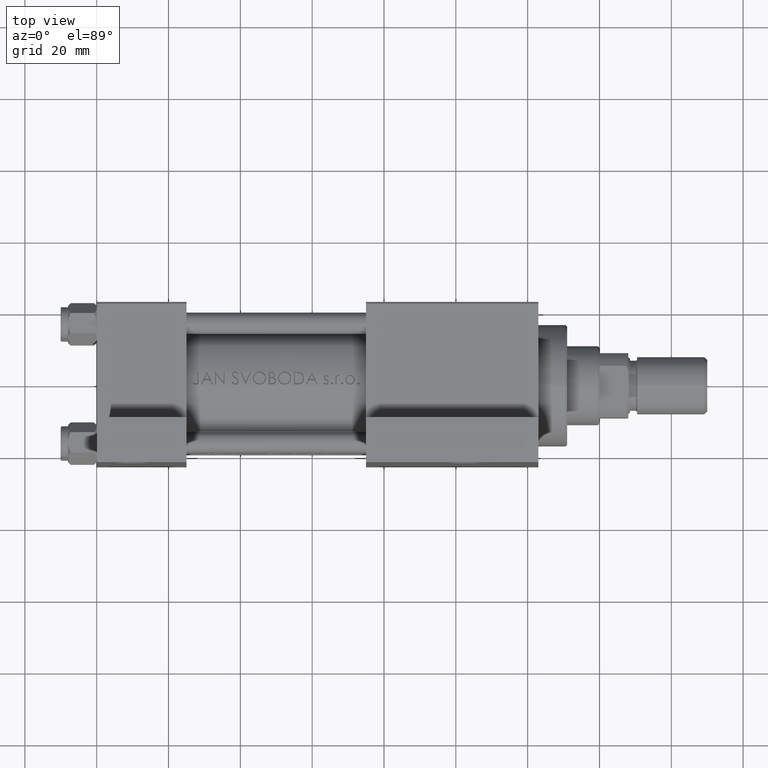
[diagram: clean part render]
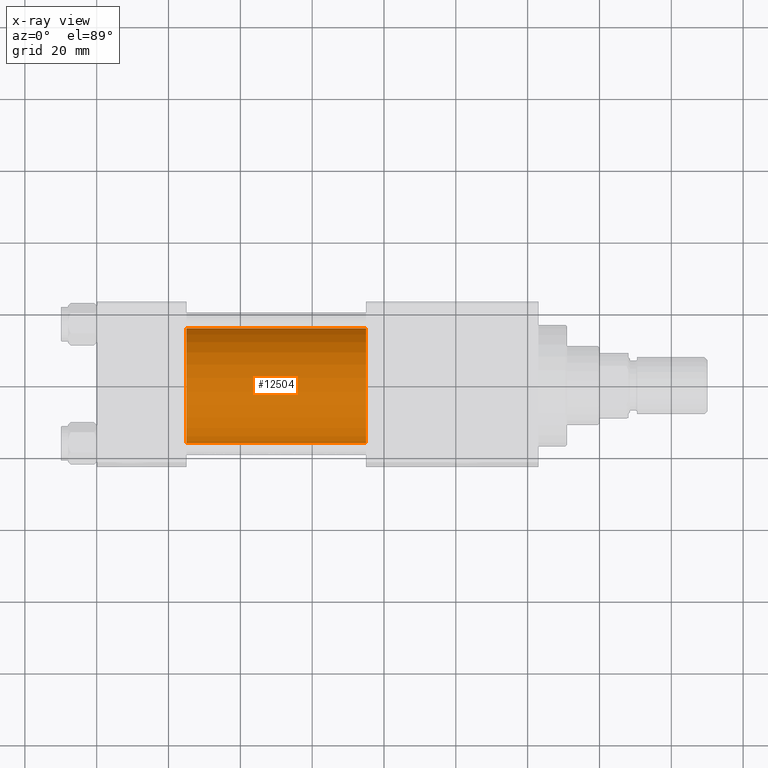
[diagram: x-ray — body ghosted, one internal face saturated and labeled with its STEP entity id]
A machine part, top view, then the same camera in x-ray: the body is ghosted and one INTERNAL B-rep face — a face not visible from any outside direction — is saturated and labeled: STEP entity #12504.
In plain terms, the highlighted cylindrical surface (partial cylindrical patch) has radius 16 mm, axis along (-1, -0, 0).
Its self-contained STEP definition (entity closure, byte-faithful):
#884 = CARTESIAN_POINT ( 'NONE',  ( 75.00000000000001421, 0.000000000000000000, -0.4999999999999970024 ) ) ;
#1369 = FACE_OUTER_BOUND ( 'NONE', #23830, .T. ) ;
#1682 = DIRECTION ( 'NONE',  ( 1.000000000000000000, 0.000000000000000000, 0.000000000000000000 ) ) ;
#4900 = CARTESIAN_POINT ( 'NONE',  ( 75.00000000000001421, 0.000000000000000000, 15.50000000000000355 ) ) ;
#5267 = DIRECTION ( 'NONE',  ( 0.000000000000000000, 0.000000000000000000, 1.000000000000000000 ) ) ;
#5868 = LINE ( 'NONE', #4900, #34252 ) ;
#6221 = ORIENTED_EDGE ( 'NONE', *, *, #37836, .T. ) ;
#6539 = VERTEX_POINT ( 'NONE', #35494 ) ;
#8382 = CARTESIAN_POINT ( 'NONE',  ( 75.00000000000001421, 0.000000000000000000, -0.4999999999999970024 ) ) ;
#9097 = DIRECTION ( 'NONE',  ( 0.000000000000000000, 0.000000000000000000, -1.000000000000000000 ) ) ;
#9909 = ORIENTED_EDGE ( 'NONE', *, *, #16137, .F. ) ;
#12212 = CIRCLE ( 'NONE', #22276, 16.00000000000000000 ) ;
#12504 = ADVANCED_FACE ( 'NONE', ( #1369 ), #35101, .F. ) ;
#16137 = EDGE_CURVE ( 'NONE', #20374, #28350, #5868, .T. ) ;
#17475 = CARTESIAN_POINT ( 'NONE',  ( 25.00000000000000000, 0.000000000000000000, -0.4999999999999970024 ) ) ;
#17698 = ORIENTED_EDGE ( 'NONE', *, *, #33313, .F. ) ;
#18708 = AXIS2_PLACEMENT_3D ( 'NONE', #8382, #23894, #9097 ) ;
#18724 = LINE ( 'NONE', #40602, #20353 ) ;
#19686 = DIRECTION ( 'NONE',  ( -1.000000000000000000, -0.000000000000000000, -0.000000000000000000 ) ) ;
#20353 = VECTOR ( 'NONE', #33537, 1000.000000000000000 ) ;
#20374 = VERTEX_POINT ( 'NONE', #21584 ) ;
#20767 = VERTEX_POINT ( 'NONE', #33112 ) ;
#21584 = CARTESIAN_POINT ( 'NONE',  ( 75.00000000000001421, 0.000000000000000000, 15.50000000000000355 ) ) ;
#22276 = AXIS2_PLACEMENT_3D ( 'NONE', #17475, #1682, #35185 ) ;
#23830 = EDGE_LOOP ( 'NONE', ( #6221, #33659, #17698, #9909 ) ) ;
#23894 = DIRECTION ( 'NONE',  ( 1.000000000000000000, 0.000000000000000000, 0.000000000000000000 ) ) ;
#27141 = CARTESIAN_POINT ( 'NONE',  ( 25.00000000000000000, 0.000000000000000000, 15.50000000000000355 ) ) ;
#28350 = VERTEX_POINT ( 'NONE', #27141 ) ;
#30975 = DIRECTION ( 'NONE',  ( -1.000000000000000000, -0.000000000000000000, -0.000000000000000000 ) ) ;
#33112 = CARTESIAN_POINT ( 'NONE',  ( 75.00000000000001421, 1.959434878635765131E-15, -16.49999999999999645 ) ) ;
#33313 = EDGE_CURVE ( 'NONE', #28350, #6539, #12212, .T. ) ;
#33537 = DIRECTION ( 'NONE',  ( -1.000000000000000000, -0.000000000000000000, -0.000000000000000000 ) ) ;
#33659 = ORIENTED_EDGE ( 'NONE', *, *, #45899, .T. ) ;
#34252 = VECTOR ( 'NONE', #19686, 1000.000000000000000 ) ;
#35101 = CYLINDRICAL_SURFACE ( 'NONE', #39610, 16.00000000000000000 ) ;
#35185 = DIRECTION ( 'NONE',  ( 0.000000000000000000, 0.000000000000000000, -1.000000000000000000 ) ) ;
#35494 = CARTESIAN_POINT ( 'NONE',  ( 25.00000000000000000, 1.959434878635765131E-15, -16.49999999999999645 ) ) ;
#37836 = EDGE_CURVE ( 'NONE', #20374, #20767, #42744, .T. ) ;
#39610 = AXIS2_PLACEMENT_3D ( 'NONE', #884, #30975, #5267 ) ;
#40602 = CARTESIAN_POINT ( 'NONE',  ( 75.00000000000001421, 1.959434878635765131E-15, -16.49999999999999645 ) ) ;
#42744 = CIRCLE ( 'NONE', #18708, 16.00000000000000000 ) ;
#45899 = EDGE_CURVE ( 'NONE', #20767, #6539, #18724, .T. ) ;